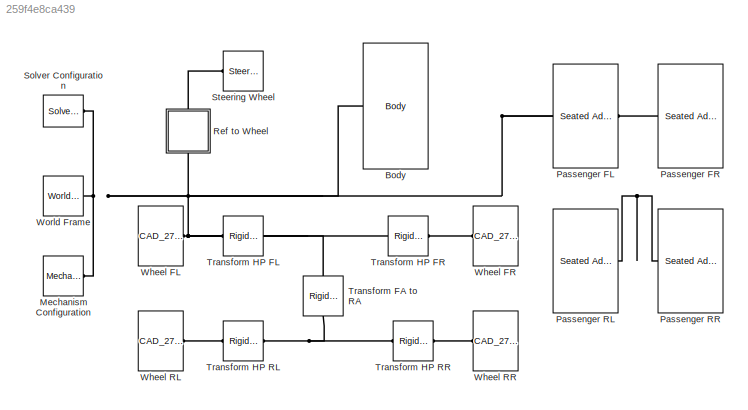
MODEL slx_259f4e8ca439
KIND model
CONFIG AbsTol = auto
CONFIG EnableMultiTasking = on
CONFIG FixedStep = auto
CONFIG MaxStep = auto
CONFIG MinStep = auto
CONFIG RelTol = 1e-3
CONFIG SampleTimeConstraint = Unconstrained
CONFIG SolverName = VariableStepAuto
CONFIG StartTime = 0.0
CONFIG StopTime = 10.0
BLOCK [Reference] Body  REF=Bus_Makhulu_Parts/Body
  Ports = [0, 0, 0, 0, 0, 1]
  SourceBlock = Bus_Makhulu_Parts/Body
BLOCK [Reference] Mechanism Configuration  REF=sm_lib/Utilities/Mechanism
Configuration
  Ports = [0, 0, 0, 0, 0, 0, 1]
  SourceBlock = sm_lib/Utilities/Mechanism\nConfiguration
  SourceProductBaseCode = MS
  SourceType = Mechanism\nConfiguration
BLOCK [Reference] Passenger FL  REF=Human_Models/Seated
Adult
Sedan
  Ports = [0, 1, 0, 0, 0, 1]
  SourceBlock = Human_Models/Seated\nAdult\nSedan
BLOCK [Reference] Passenger FR  REF=Human_Models/Seated
Adult
Sedan
  Ports = [0, 1, 0, 0, 0, 1]
  SourceBlock = Human_Models/Seated\nAdult\nSedan
BLOCK [Reference] Passenger RL  REF=Human_Models/Seated
Adult
Sedan
  Ports = [0, 1, 0, 0, 0, 1]
  SourceBlock = Human_Models/Seated\nAdult\nSedan
BLOCK [Reference] Passenger RR  REF=Human_Models/Seated
Adult
Sedan
  Ports = [0, 1, 0, 0, 0, 1]
  SourceBlock = Human_Models/Seated\nAdult\nSedan
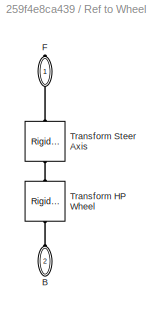
BLOCK [SubSystem] Ref to Wheel
  NameLocation = right
  Ports = [0, 0, 0, 0, 0, 1, 1]
  RequestExecContextInheritance = off
BLOCK [PMIOPort] Ref to Wheel/B
  NameLocation = right
  Port = 2
  Side = Left
BLOCK [PMIOPort] Ref to Wheel/F
  NameLocation = left
  Side = Right
BLOCK [Reference] Ref to Wheel/Transform HP Wheel  REF=sm_lib/Frames and
Transforms/Rigid
Transform
  NameLocation = left
  Ports = [0, 0, 0, 0, 0, 1, 1]
  SourceBlock = sm_lib/Frames and\nTransforms/Rigid\nTransform
  SourceProductBaseCode = MS
  SourceType = Rigid\nTransform
BLOCK [Reference] Ref to Wheel/Transform Steer Axis  REF=sm_lib/Frames and
Transforms/Rigid
Transform
  NameLocation = left
  Ports = [0, 0, 0, 0, 0, 1, 1]
  SourceBlock = sm_lib/Frames and\nTransforms/Rigid\nTransform
  SourceProductBaseCode = MS
  SourceType = Rigid\nTransform
BLOCK [Reference] Solver Configuration  REF=nesl_utility/Solver
Configuration
  Ports = [0, 0, 0, 0, 0, 0, 1]
  SourceBlock = nesl_utility/Solver\nConfiguration
  SourceProductBaseCode = SS,PW,VE
  SourceType = Solver\nConfiguration
BLOCK [Reference] Steering Wheel  REF=Bus_Makhulu_Parts/Steering Wheel
  Ports = [0, 0, 0, 0, 0, 1]
  SourceBlock = Bus_Makhulu_Parts/Steering Wheel
  SourceType = SubSystem
BLOCK [Reference] Transform FA to RA  REF=sm_lib/Frames and
Transforms/Rigid
Transform
  NameLocation = left
  Ports = [0, 0, 0, 0, 0, 1, 1]
  SourceBlock = sm_lib/Frames and\nTransforms/Rigid\nTransform
  SourceProductBaseCode = MS
  SourceType = Rigid\nTransform
BLOCK [Reference] Transform HP FL  REF=sm_lib/Frames and
Transforms/Rigid
Transform
  Ports = [0, 0, 0, 0, 0, 1, 1]
  SourceBlock = sm_lib/Frames and\nTransforms/Rigid\nTransform
  SourceProductBaseCode = MS
  SourceType = Rigid\nTransform
BLOCK [Reference] Transform HP FR  REF=sm_lib/Frames and
Transforms/Rigid
Transform
  Ports = [0, 0, 0, 0, 0, 1, 1]
  SourceBlock = sm_lib/Frames and\nTransforms/Rigid\nTransform
  SourceProductBaseCode = MS
  SourceType = Rigid\nTransform
BLOCK [Reference] Transform HP RL  REF=sm_lib/Frames and
Transforms/Rigid
Transform
  Ports = [0, 0, 0, 0, 0, 1, 1]
  SourceBlock = sm_lib/Frames and\nTransforms/Rigid\nTransform
  SourceProductBaseCode = MS
  SourceType = Rigid\nTransform
BLOCK [Reference] Transform HP RR  REF=sm_lib/Frames and
Transforms/Rigid
Transform
  Ports = [0, 0, 0, 0, 0, 1, 1]
  SourceBlock = sm_lib/Frames and\nTransforms/Rigid\nTransform
  SourceProductBaseCode = MS
  SourceType = Rigid\nTransform
BLOCK [Reference] Wheel FL  REF=Bus_Makhulu_Parts/CAD_270_70R22
  AttributesFormatString = %<LabelModeActiveChoice>
  Ports = [0, 0, 0, 0, 0, 1]
  SourceBlock = Bus_Makhulu_Parts/CAD_270_70R22
BLOCK [Reference] Wheel FR  REF=Bus_Makhulu_Parts/CAD_270_70R22
  AttributesFormatString = %<LabelModeActiveChoice>
  Ports = [0, 0, 0, 0, 0, 1]
  SourceBlock = Bus_Makhulu_Parts/CAD_270_70R22
BLOCK [Reference] Wheel RL  REF=Bus_Makhulu_Parts/CAD_270_70R22_2x
  AttributesFormatString = %<LabelModeActiveChoice>
  Ports = [0, 0, 0, 0, 0, 1]
  SourceBlock = Bus_Makhulu_Parts/CAD_270_70R22_2x
BLOCK [Reference] Wheel RR  REF=Bus_Makhulu_Parts/CAD_270_70R22_2x
  AttributesFormatString = %<LabelModeActiveChoice>
  Ports = [0, 0, 0, 0, 0, 1]
  SourceBlock = Bus_Makhulu_Parts/CAD_270_70R22_2x
BLOCK [Reference] World Frame  REF=sm_lib/Frames and
Transforms/World Frame
  Ports = [0, 0, 0, 0, 0, 0, 1]
  SourceBlock = sm_lib/Frames and\nTransforms/World Frame
  SourceProductBaseCode = MS
  SourceType = World Frame
PNET net1: Body:LConn1 -- Mechanism Configuration:RConn1 -- Passenger FL:LConn1 -- Passenger FR:LConn1 -- Passenger RL:LConn1 -- Passenger RR:LConn1 -- Ref to Wheel:LConn1 -- Solver Configuration:RConn1 -- Transform FA to RA:LConn1 -- Transform HP FL:LConn1 -- Transform HP FR:LConn1 -- World Frame:RConn1
PLINE Ref to Wheel/B:RConn1 -- Ref to Wheel/Transform HP Wheel:LConn1
PLINE Ref to Wheel/F:RConn1 -- Ref to Wheel/Transform Steer Axis:RConn1
PLINE Ref to Wheel/Transform HP Wheel:RConn1 -- Ref to Wheel/Transform Steer Axis:LConn1
PLINE Ref to Wheel:RConn1 -- Steering Wheel:LConn1
PNET net2: Transform FA to RA:RConn1 -- Transform HP RL:LConn1 -- Transform HP RR:LConn1
PLINE Transform HP FL:RConn1 -- Wheel FL:LConn1
PLINE Transform HP FR:RConn1 -- Wheel FR:LConn1
PLINE Transform HP RL:RConn1 -- Wheel RL:LConn1
PLINE Transform HP RR:RConn1 -- Wheel RR:LConn1
note: PNET lines group multi-terminal physical nets as a canonical sorted terminal list (undirected conserving connections); 2-terminal nets keep the pairwise PLINE form
